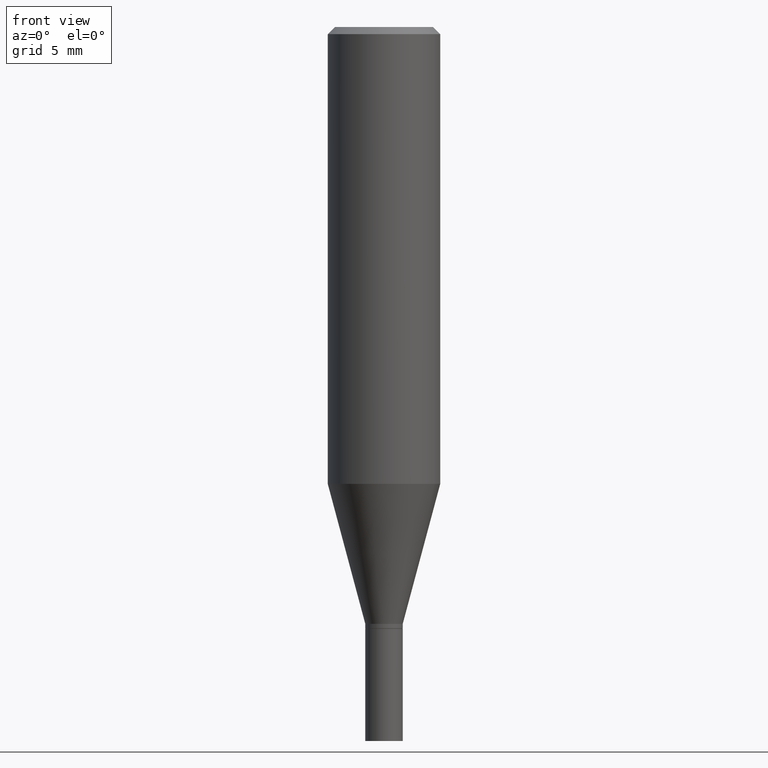
[diagram: clean part render]
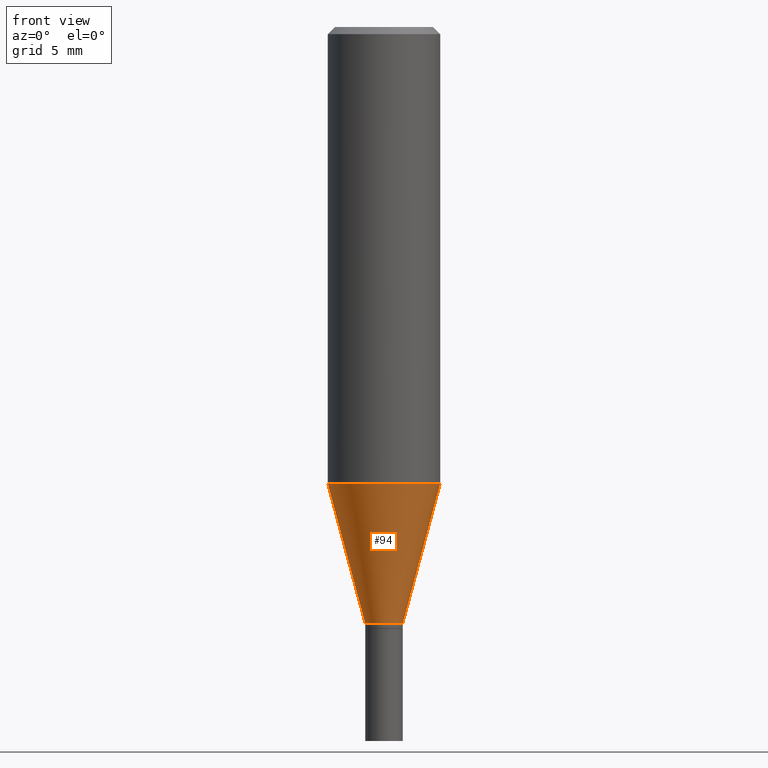
[diagram: same view with one face highlighted and labeled with its STEP entity id]
A machine part, front view. The second image highlights one B-rep face of the part: STEP entity #94.
In plain terms, the highlighted conical surface has half-angle 15 deg.
Its self-contained STEP definition (entity closure, byte-faithful):
#20 = EDGE_CURVE ( 'NONE', #309, #268, #135, .T. ) ;
#39 = LINE ( 'NONE', #349, #429 ) ;
#68 = CARTESIAN_POINT ( 'NONE',  ( 3.066128789194924468E-29, -4.377619302641535898E-15, -1.253800000000000248 ) ) ;
#74 = EDGE_CURVE ( 'NONE', #137, #414, #129, .T. ) ;
#83 = ORIENTED_EDGE ( 'NONE', *, *, #363, .F. ) ;
#85 = DIRECTION ( 'NONE',  ( -0.2588190451025213501, 5.211531920934551042E-15, 0.9659258262890682012 ) ) ;
#88 = LINE ( 'NONE', #198, #399 ) ;
#89 = CARTESIAN_POINT ( 'NONE',  ( 3.066128789194924468E-29, -4.377619302641535898E-15, -1.253800000000000248 ) ) ;
#94 = ADVANCED_FACE ( 'NONE', ( #354 ), #371, .T. ) ;
#129 = CIRCLE ( 'NONE', #158, 0.03934999999999991283 ) ;
#130 = DIRECTION ( 'NONE',  ( 0.2588190451025213501, 1.565188264969621968E-15, 0.9659258262890682012 ) ) ;
#135 = CIRCLE ( 'NONE', #316, 0.1180999999999999966 ) ;
#137 = VERTEX_POINT ( 'NONE', #393 ) ;
#158 = AXIS2_PLACEMENT_3D ( 'NONE', #89, #372, #225 ) ;
#168 = CARTESIAN_POINT ( 'NONE',  ( 0.03934999999999991283, -4.652398884008490026E-15, -1.253800000000000248 ) ) ;
#181 = DIRECTION ( 'NONE',  ( -2.445468806185136597E-29, 3.491481338843145583E-15, 1.000000000000000000 ) ) ;
#198 = CARTESIAN_POINT ( 'NONE',  ( -0.03934999999999991283, -4.098020736119937292E-15, -1.253800000000000248 ) ) ;
#200 = ORIENTED_EDGE ( 'NONE', *, *, #74, .T. ) ;
#211 = CARTESIAN_POINT ( 'NONE',  ( 2.347407949845566514E-29, -3.351476424810041143E-15, -0.9599009989039514190 ) ) ;
#225 = DIRECTION ( 'NONE',  ( 1.000000000000000000, -6.982962677686260400E-15, 0.000000000000000000 ) ) ;
#238 = DIRECTION ( 'NONE',  ( -2.445468806185136597E-29, 3.491481338843145583E-15, 1.000000000000000000 ) ) ;
#249 = AXIS2_PLACEMENT_3D ( 'NONE', #68, #181, #356 ) ;
#268 = VERTEX_POINT ( 'NONE', #378 ) ;
#309 = VERTEX_POINT ( 'NONE', #415 ) ;
#312 = DIRECTION ( 'NONE',  ( 1.000000000000000000, -6.982962677686269077E-15, 0.000000000000000000 ) ) ;
#316 = AXIS2_PLACEMENT_3D ( 'NONE', #211, #238, #312 ) ;
#349 = CARTESIAN_POINT ( 'NONE',  ( 0.03934999999999991283, -4.652398884008490026E-15, -1.253800000000000248 ) ) ;
#354 = FACE_OUTER_BOUND ( 'NONE', #367, .T. ) ;
#356 = DIRECTION ( 'NONE',  ( 1.000000000000000000, -6.982962677686260400E-15, 0.000000000000000000 ) ) ;
#363 = EDGE_CURVE ( 'NONE', #137, #309, #88, .T. ) ;
#367 = EDGE_LOOP ( 'NONE', ( #83, #200, #418, #450 ) ) ;
#371 = CONICAL_SURFACE ( 'NONE', #249, 0.03934999999999991283, 0.2617993877991500740 ) ;
#372 = DIRECTION ( 'NONE',  ( -2.445468806185136597E-29, 3.491481338843145583E-15, 1.000000000000000000 ) ) ;
#378 = CARTESIAN_POINT ( 'NONE',  ( 0.1181000000000000105, -4.176164317044788617E-15, -0.9599009989039514190 ) ) ;
#393 = CARTESIAN_POINT ( 'NONE',  ( -0.03934999999999991283, -3.305173094998650119E-15, -1.253800000000000248 ) ) ;
#396 = EDGE_CURVE ( 'NONE', #414, #268, #39, .T. ) ;
#399 = VECTOR ( 'NONE', #85, 39.37007874015747433 ) ;
#414 = VERTEX_POINT ( 'NONE', #168 ) ;
#415 = CARTESIAN_POINT ( 'NONE',  ( -0.1181000000000000105, -2.512325453877362157E-15, -0.9599009989039514190 ) ) ;
#418 = ORIENTED_EDGE ( 'NONE', *, *, #396, .T. ) ;
#429 = VECTOR ( 'NONE', #130, 39.37007874015747433 ) ;
#450 = ORIENTED_EDGE ( 'NONE', *, *, #20, .F. ) ;